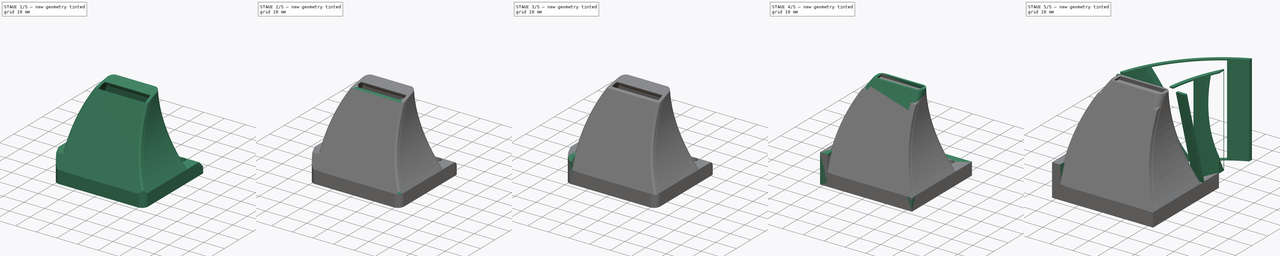
[diagram: build sequence overview — one tinted view per stage of 5, left to right]
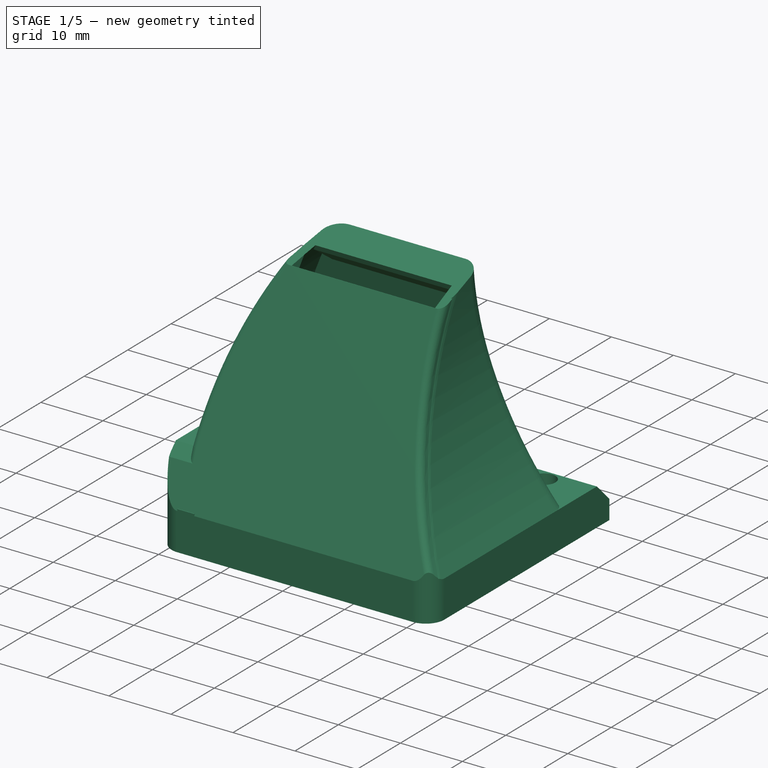
[diagram: stage 1 of 5 — iso view after this stage's code; geometry added in this stage tinted green]
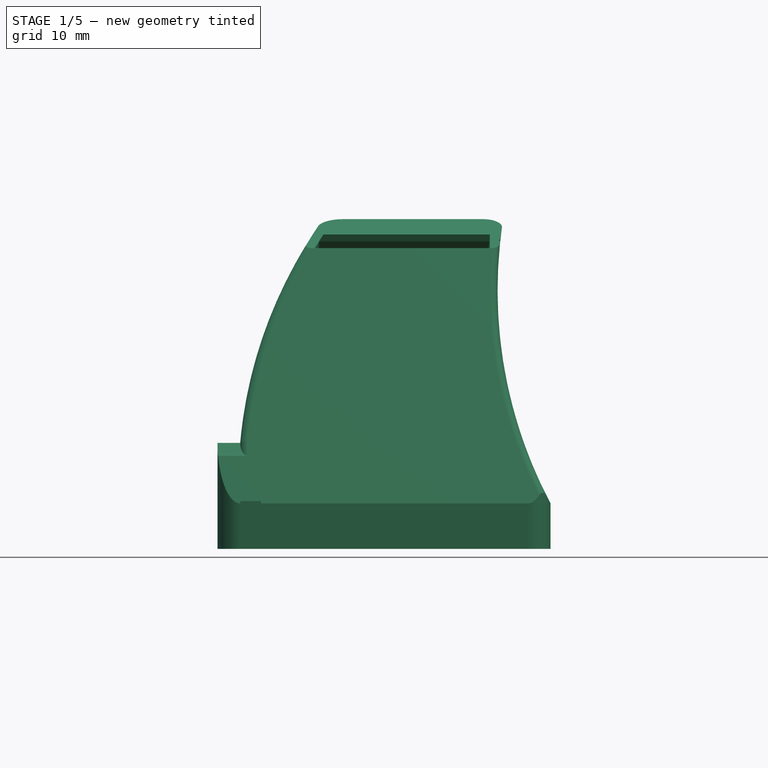
[diagram: stage 1 of 5 — front view after this stage's code; geometry added in this stage tinted green]
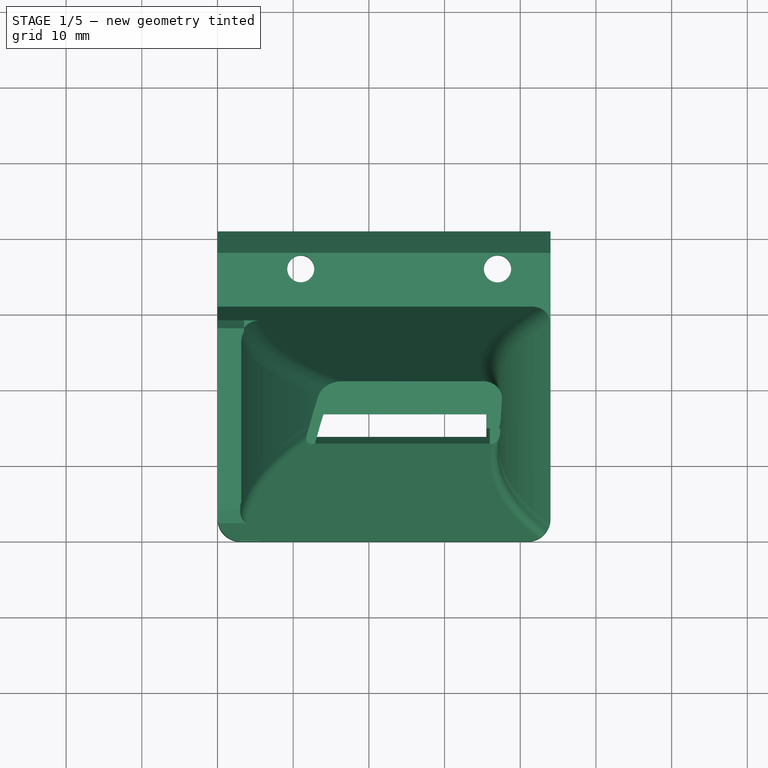
[diagram: stage 1 of 5 — top view after this stage's code; geometry added in this stage tinted green]
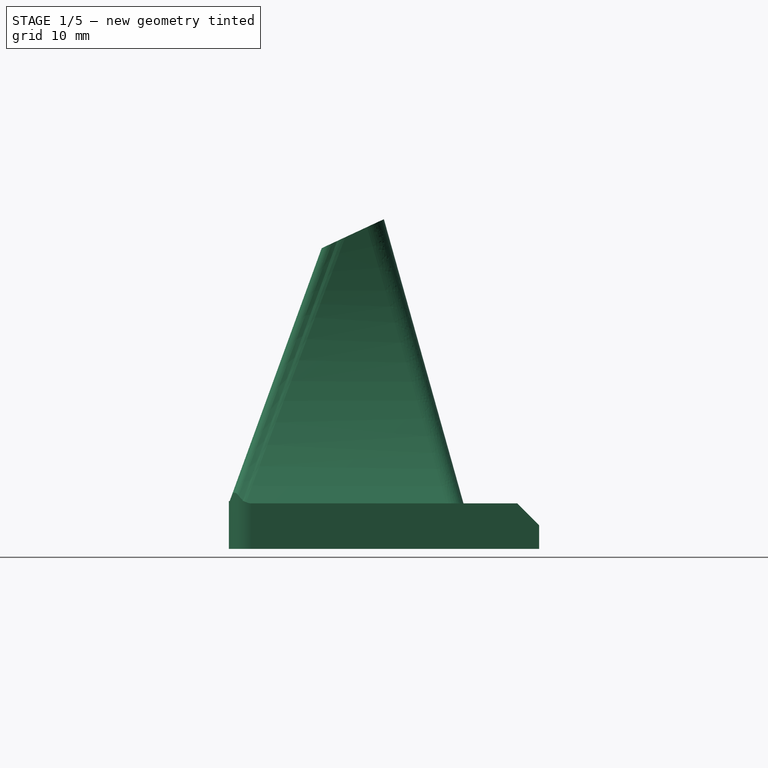
[diagram: stage 1 of 5 — right view after this stage's code; geometry added in this stage tinted green]
FCSTD DOCUMENT  (FreeCAD 0.16R5480 (Git))
Label: fan_duct_right_0.7.4
License: All rights reserved
LicenseURL: http://en.wikipedia.org/wiki/All_rights_reserved
objects: Sketcher::SketchObject×29, PartDesign::Pocket×15, PartDesign::Pad×13, Part::Feature×9, PartDesign::Chamfer×5, PartDesign::Fillet×4
note: 103 computed .brp shape members not serialized (recipe doc carries the construction recipe); baked Part::Feature solids carry a one-line shape summary decoded from their .brp

FEATURE [Part::Feature] Pad003006001  label="Pad003007"
  shape: bbox 45.16 x 40.24 x 46.74 mm, 109 faces (baked)
FEATURE [Sketcher::SketchObject] Sketch024
  Placement = pos=(0,29.3768,8.22563) rot=(1,0,0;1.84381rad)
  Support = -> Pad003006001 [Face46]
  sketch-geometry (9):
    g0: LineSegment StartX=14.8638 StartY=35.8741 StartZ=0 EndX=14.7604 EndY=33.4111 EndZ=0
    g1: LineSegment StartX=14.7604 StartY=33.4111 StartZ=0 EndX=35.8484 EndY=33.4111 EndZ=0
    g2: LineSegment StartX=42.3328 StartY=-2.31244 StartZ=0 EndX=9.27716 EndY=-2.31244 EndZ=0
    g3: LineSegment StartX=4.25167 StartY=4.63032 StartZ=0 EndX=4.25167 EndY=-2.31244 EndZ=0
    g4: LineSegment StartX=9.27716 StartY=-2.31244 StartZ=0 EndX=4.25167 EndY=-2.31244 EndZ=0
    g5: ArcOfCircle CenterX=62.8526 CenterY=2.15028 CenterZ=0 NormalX=0 NormalY=0 NormalZ=1 Radius=58.6534 StartAngle=2.52903 EndAngle=3.0993
    g6: GeomPoint [constr] X=118.378 Y=21.0502 Z=0
    g7: ArcOfCircle CenterX=96.9052 CenterY=26.0435 CenterZ=0 NormalX=0 NormalY=0 NormalZ=1 Radius=61.4997 StartAngle=3.02151 EndAngle=3.6208
    g8: GeomPoint [constr] X=157.41 Y=15.0273 Z=0
  constraints (13):
    c: Coincident(g1,g0)
    c: Horizontal(g1)
    c: Horizontal(g2)
    c: Vertical(g3)
    c: Coincident(g4,g2)
    c: Coincident(g4,g3)
    c: Horizontal(g4)
    c: Coincident(g5,g0)
    c: Coincident(g5,g3)
    c: PointOnObject(g6,g5)
    c: Coincident(g7,g2)
    c: Coincident(g7,g1)
    c: PointOnObject(g8,g7)
FEATURE [PartDesign::Pad] Pad003006002
  Length = 0.25
  Length2 = 100
  Sketch = -> Sketch024
  Type = 0
FEATURE [Sketcher::SketchObject] Sketch025
  Placement = pos=(0,40,0) rot=(0,0.707107,0.707107;3.14159rad)
  Support = -> Pad003006002 [Face74]
  sketch-geometry (4):
    g0: LineSegment StartX=-3 StartY=1.9 StartZ=0 EndX=-41 EndY=1.9 EndZ=0
    g1: LineSegment StartX=-41 StartY=1.9 StartZ=0 EndX=-41 EndY=0 EndZ=0
    g2: LineSegment StartX=-41 StartY=0 StartZ=0 EndX=-3 EndY=0 EndZ=0
    g3: LineSegment StartX=-3 StartY=0 StartZ=0 EndX=-3 EndY=1.9 EndZ=0
  constraints (8):
    c: Coincident(g0,g1)
    c: Coincident(g1,g2)
    c: Coincident(g2,g3)
    c: Coincident(g3,g0)
    c: Horizontal(g0)
    c: Horizontal(g2)
    c: Vertical(g1)
    c: Vertical(g3)
FEATURE [PartDesign::Pad] Pad003006003
  Length = 1
  Length2 = 100
  Sketch = -> Sketch025
  Type = 0
FEATURE [Sketcher::SketchObject] Sketch026
  Placement = pos=(0,41,0) rot=(0,0.707107,0.707107;3.14159rad)
  Support = -> Pad003006003 [Face116]
  sketch-geometry (4):
    g0: LineSegment StartX=0 StartY=0 StartZ=0 EndX=-44 EndY=0 EndZ=0
    g1: LineSegment StartX=-44 StartY=0 StartZ=0 EndX=-44 EndY=6 EndZ=0
    g2: LineSegment StartX=-44 StartY=6 StartZ=0 EndX=0 EndY=6 EndZ=0
    g3: LineSegment StartX=0 StartY=6 StartZ=0 EndX=0 EndY=0 EndZ=0
  constraints (9):
    c: Coincident(g0,g1)
    c: Coincident(g1,g2)
    c: Coincident(g2,g3)
    c: Coincident(g3,g0)
    c: Horizontal(g0)
    c: Horizontal(g2)
    c: Vertical(g1)
    c: Vertical(g3)
    c: Coincident(g0,g-1)
FEATURE [PartDesign::Pad] Pad003006004
  Length = 10
  Length2 = 100
  Reversed = true
  Sketch = -> Sketch026
  Type = 0
FEATURE [Sketcher::SketchObject] Sketch027
  Placement = pos=(0,0,6) rot=(0,0,1;0rad)
  Support = -> Pad003006004 [Face109]
  sketch-geometry (2):
    g0: Circle CenterX=11 CenterY=36 CenterZ=0 NormalX=0 NormalY=0 NormalZ=1 Radius=1.78415
    g1: Circle CenterX=37 CenterY=36 CenterZ=0 NormalX=0 NormalY=0 NormalZ=1 Radius=1.8
FEATURE [PartDesign::Pocket] Pocket010003003
  Length = 5
  Sketch = -> Sketch027
  Type = 1
FEATURE [PartDesign::Chamfer] Chamfer004
  Base = -> Pocket010003003 [Edge343,Edge348]
  Size = 2.01
FEATURE [PartDesign::Chamfer] Chamfer005
  Base = -> Chamfer004 [Edge58]
  Size = 2.9
FEATURE [Part::Feature] Fillet004001  label="Fillet005"
  shape: bbox 45.16 x 41.39 x 46.74 mm, 120 faces (baked)
FEATURE [Part::Feature] Fillet004001001  label="Fillet006"
  shape: bbox 45.16 x 41.39 x 46.74 mm, 120 faces (baked)
FEATURE [Part::Feature] Fillet004001001001  label="Fillet007"
  shape: bbox 45.16 x 41.39 x 46.74 mm, 120 faces (baked)
FEATURE [Part::Feature] Fillet004001001001001  label="Fillet008"
  shape: bbox 45.16 x 41.39 x 46.74 mm, 120 faces (baked)
FEATURE [Sketcher::SketchObject] Sketch028
  Placement = pos=(35.9772,0,0) rot=(0.57735,-0.57735,-0.57735;2.0944rad)
  Support = -> Fillet004001001001001 [Face46]
  sketch-geometry (4):
    g0: LineSegment StartX=-18.1497 StartY=41.3759 StartZ=0 EndX=-20.3949 EndY=40.3647 EndZ=0
    g1: LineSegment StartX=-18.1497 StartY=41.3759 StartZ=0 EndX=-16.5713 EndY=40.6527 EndZ=0
    g2: LineSegment StartX=-20.3949 StartY=40.3647 StartZ=0 EndX=-21.2697 EndY=37.2553 EndZ=0
    g3: LineSegment StartX=-21.2697 StartY=37.2553 StartZ=0 EndX=-16.5713 EndY=40.6527 EndZ=0
  constraints (4):
    c: Coincident(g0,g1)
    c: Coincident(g2,g0)
    c: Coincident(g3,g2)
    c: Coincident(g3,g1)
FEATURE [PartDesign::Pad] Pad003006005
  Length = 22.58
  Length2 = 100
  Sketch = -> Sketch028
  Type = 0
FEATURE [Part::Feature] Pad003006005001  label="Pad003006006"
  shape: bbox 45.16 x 41.39 x 46.74 mm, 121 faces (baked)
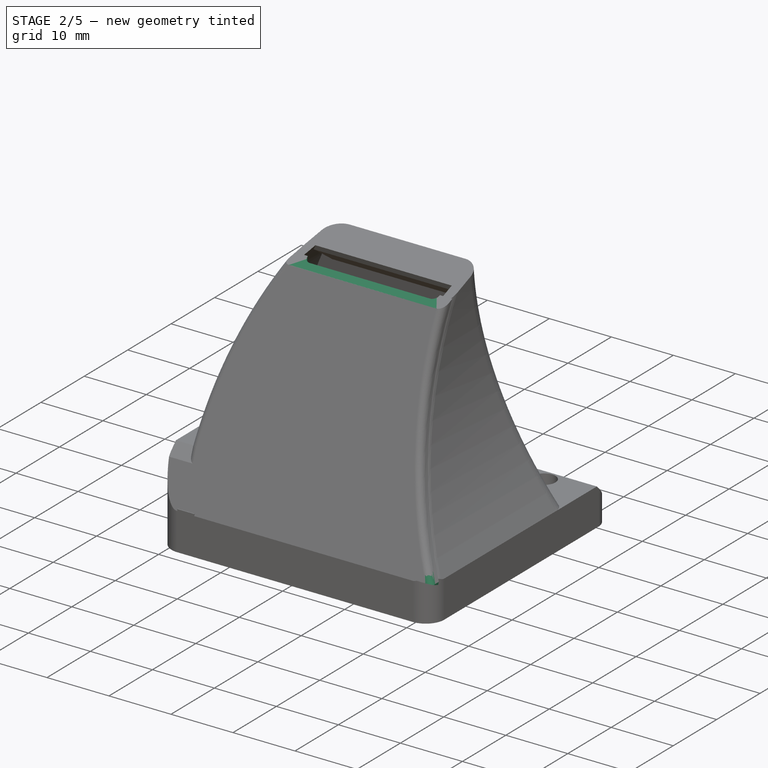
[diagram: stage 2 of 5 — iso view after this stage's code; geometry added in this stage tinted green]
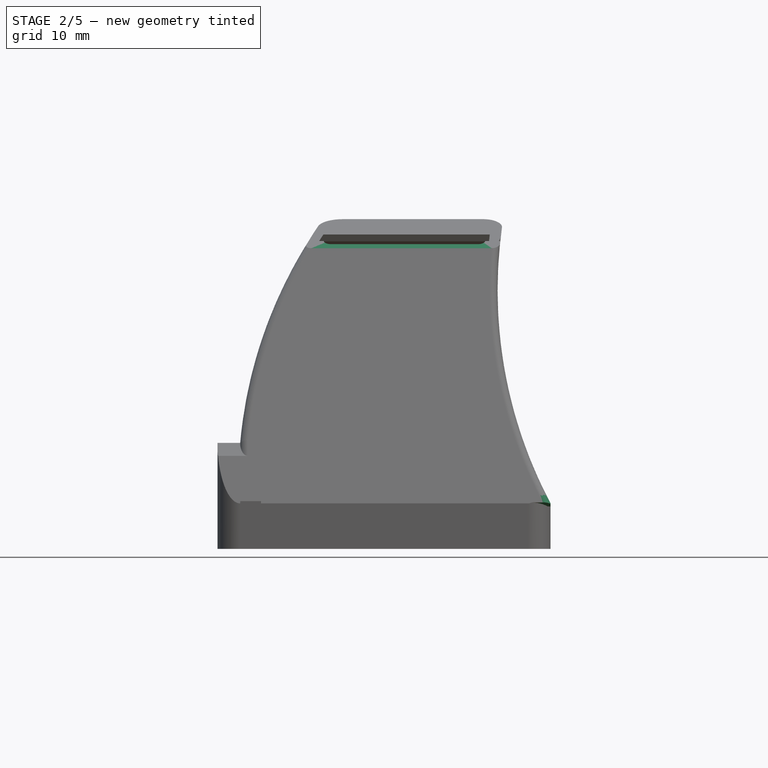
[diagram: stage 2 of 5 — front view after this stage's code; geometry added in this stage tinted green]
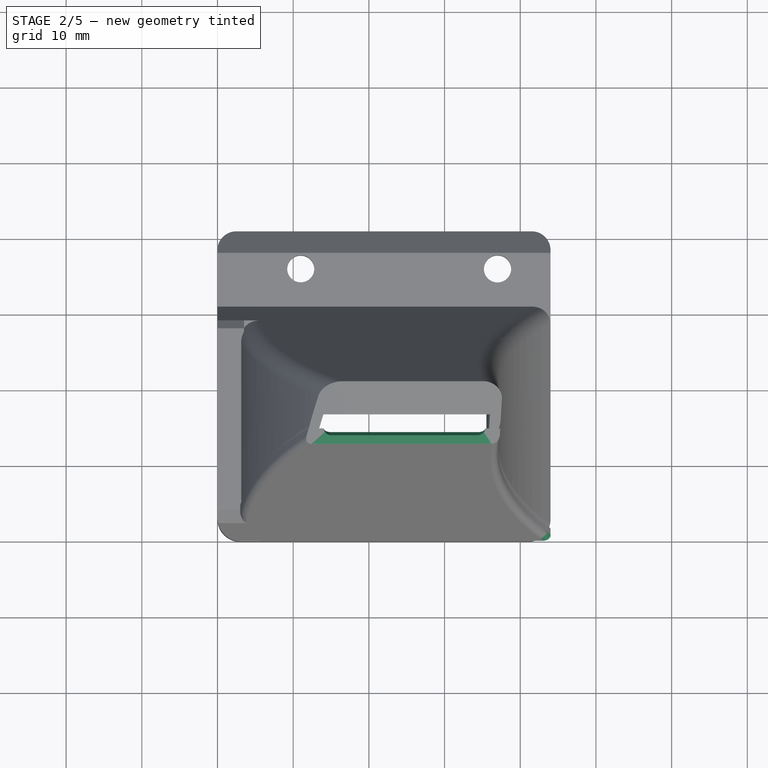
[diagram: stage 2 of 5 — top view after this stage's code; geometry added in this stage tinted green]
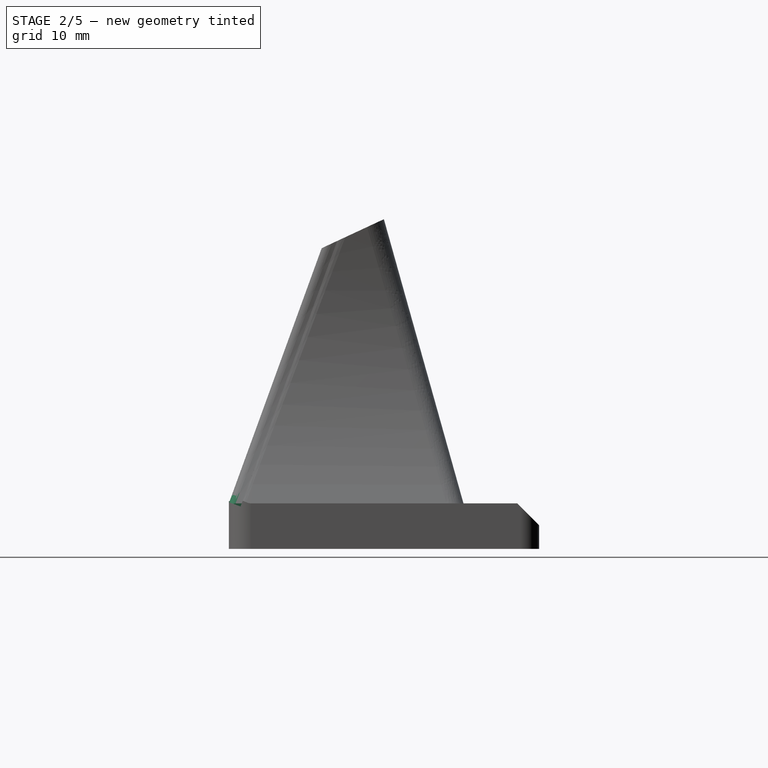
[diagram: stage 2 of 5 — right view after this stage's code; geometry added in this stage tinted green]
FEATURE [Part::Feature] Pocket010001  label="Pocket011"
  shape: bbox 45.16 x 48.16 x 64.13 mm, 77 faces (baked)
FEATURE [PartDesign::Fillet] Fillet003
  Base = -> Pocket010001 [Edge233,Edge41]
  Radius = 1
FEATURE [Sketcher::SketchObject] Sketch016
  Support = -> Fillet003 [Face12]
  sketch-geometry (4):
    g0: LineSegment StartX=15.1026 StartY=36.3754 StartZ=0 EndX=13.8927 EndY=33.8754 EndZ=0
    g1: LineSegment StartX=13.8927 StartY=33.8754 StartZ=0 EndX=36.4026 EndY=33.8754 EndZ=0
    g2: LineSegment StartX=36.4026 StartY=33.8754 StartZ=0 EndX=36.4026 EndY=36.3754 EndZ=0
    g3: LineSegment StartX=36.4026 StartY=36.3754 StartZ=0 EndX=15.1026 EndY=36.3754 EndZ=0
  constraints (12):
    c: Coincident(g0,g1)
    c: Horizontal(g1)
    c: Coincident(g1,g2)
    c: Vertical(g2)
    c: Coincident(g2,g3)
    c: Coincident(g3,g0)
    c: Horizontal(g3)
    c: DistanceX(g2) = 36.4026
    c: DistanceY(g2) = 36.3754
    c: DistanceX(g3) = -21.3
    c: DistanceX(g1) = 22.5099
    c: DistanceY(g2) = 2.5
FEATURE [PartDesign::Pad] Pad003003
  Length = 1
  Length2 = 100
  Reversed = true
  Sketch = -> Sketch016
  Type = 0
FEATURE [PartDesign::Chamfer] Chamfer003
  Base = -> Pad003003 [Edge210]
  Size = 1.9
FEATURE [Sketcher::SketchObject] Sketch017
  ExternalGeometry = -> [Chamfer003]
  Support = -> Chamfer003 [Face30]
  sketch-geometry (4):
    g0: ArcOfCircle CenterX=15.0488 CenterY=30.1658 CenterZ=0 NormalX=0 NormalY=0 NormalZ=1 Radius=1 StartAngle=1.5708 EndAngle=4.71239
    g1: ArcOfCircle CenterX=34.3585 CenterY=30.1658 CenterZ=0 NormalX=0 NormalY=0 NormalZ=1 Radius=1 StartAngle=4.71239 EndAngle=7.85398
    g2: LineSegment StartX=15.0488 StartY=29.1658 StartZ=0 EndX=34.3585 EndY=29.1658 EndZ=0
    g3: LineSegment StartX=15.0488 StartY=31.1658 StartZ=0 EndX=34.3585 EndY=31.1658 EndZ=0
  constraints (10):
    c: Tangent(g0,g3) = 1.5708
    c: Tangent(g0,g2) = -1.5708
    c: Tangent(g2,g1) = -1.5708
    c: Tangent(g3,g1) = 1.5708
    c: Horizontal(g2)
    c: Equal(g0,g1)
    c: PointOnObject(g0,g-3)
    c: Radius(g1) = 1
    c: DistanceX(g-3,g1) = -3
    c: DistanceX(g0,g-3) = -3
FEATURE [PartDesign::Pocket] Pocket010002
  Length = 5
  Sketch = -> Sketch017
  Type = 0
FEATURE [Part::Feature] Pocket010003001  label="Pocket010004"
  shape: bbox 45.16 x 48.16 x 64.13 mm, 100 faces (baked)
FEATURE [Sketcher::SketchObject] Sketch020
  ExternalGeometry = -> [Pocket010003001]
  Placement = pos=(0,0,0) rot=(1,0,0;3.14159rad)
  Support = -> Pocket010003001 [Face28]
  sketch-geometry (3):
    g0: ArcOfCircle CenterX=41 CenterY=-3 CenterZ=0 NormalX=0 NormalY=0 NormalZ=1 Radius=3 StartAngle=0 EndAngle=1.5708
    g1: LineSegment StartX=41 StartY=0 StartZ=0 EndX=44 EndY=0 EndZ=0
    g2: LineSegment StartX=44 StartY=0 StartZ=0 EndX=44 EndY=-3 EndZ=0
  constraints (8):
    c: Coincident(g0,g-3)
    c: Coincident(g0,g-3)
    c: Coincident(g0,g-3)
    c: Coincident(g0,g1)
    c: Coincident(g1,g2)
    c: Coincident(g2,g0)
    c: Vertical(g2)
    c: Horizontal(g1)
FEATURE [PartDesign::Pocket] Pocket010003002
  Length = 5
  Sketch = -> Sketch020
  Type = 1
FEATURE [Sketcher::SketchObject] Sketch021
  ExternalGeometry = -> [Pocket010003002]
  Placement = pos=(0,0,0) rot=(1,0,0;1.5708rad)
  Support = -> Pocket010003002 [Face30]
  sketch-geometry (4):
    g0: LineSegment StartX=3 StartY=0 StartZ=0 EndX=5.75 EndY=0 EndZ=0
    g1: LineSegment StartX=5.75 StartY=0 StartZ=0 EndX=5.75 EndY=6.3 EndZ=0
    g2: LineSegment StartX=5.75 StartY=6.3 StartZ=0 EndX=3 EndY=6.3 EndZ=0
    g3: LineSegment StartX=3 StartY=6.3 StartZ=0 EndX=3 EndY=0 EndZ=0
  constraints (11):
    c: Coincident(g0,g1)
    c: Coincident(g1,g2)
    c: Coincident(g2,g3)
    c: Coincident(g3,g0)
    c: Horizontal(g0)
    c: Horizontal(g2)
    c: Vertical(g1)
    c: Vertical(g3)
    c: Coincident(g0,g-3)
    c: DistanceX(g1) = 5.75
    c: DistanceY(g1) = 6.3
FEATURE [PartDesign::Pad] Pad003005
  Length = 1
  Length2 = 100
  Reversed = true
  Sketch = -> Sketch021
  Type = 0
FEATURE [Sketcher::SketchObject] Sketch022
  Placement = pos=(0,0,0) rot=(0.57735,-0.57735,-0.57735;2.0944rad)
  Support = -> Pad003005 [Face65]
FEATURE [Sketcher::SketchObject] Sketch023
  ExternalGeometry = -> [Pad003005]
  Placement = pos=(0,30.3041,8.48528) rot=(0,0.604304,0.796754;3.14159rad)
  Support = -> Pad003005 [Face92]
  sketch-geometry (4):
    g0: LineSegment StartX=0 StartY=4.63071 StartZ=0 EndX=-9.27716 EndY=4.63071 EndZ=0
    g1: LineSegment StartX=-9.27716 StartY=4.63071 StartZ=0 EndX=-9.27716 EndY=-2.58087 EndZ=0
    g2: LineSegment StartX=-9.27716 StartY=-2.58087 StartZ=0 EndX=0 EndY=-2.58087 EndZ=0
    g3: LineSegment StartX=0 StartY=-2.58087 StartZ=0 EndX=0 EndY=4.63071 EndZ=0
  constraints (10):
    c: Coincident(g0,g1)
    c: Coincident(g1,g2)
    c: Coincident(g2,g3)
    c: Coincident(g3,g0)
    c: Horizontal(g0)
    c: Horizontal(g2)
    c: Vertical(g1)
    c: Vertical(g3)
    c: Coincident(g0,g-3)
    c: PointOnObject(g1,g-4)
FEATURE [PartDesign::Pad] Pad003006
  Length = 1
  Length2 = 100
  Reversed = true
  Sketch = -> Sketch023
  Type = 0
FEATURE [PartDesign::Fillet] Fillet004
  Base = -> Chamfer005 [Edge1,Edge4]
  Radius = 2.5
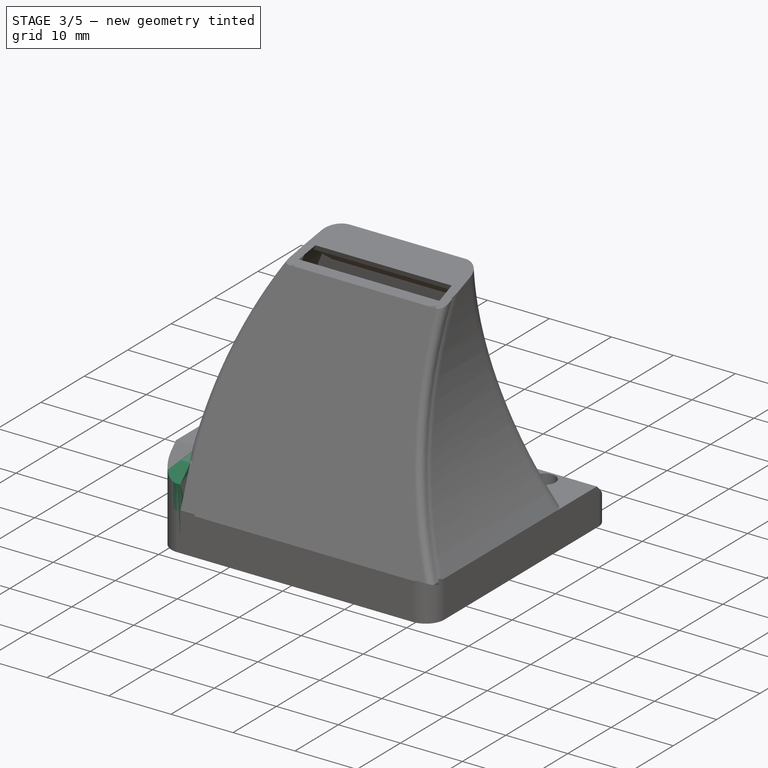
[diagram: stage 3 of 5 — iso view after this stage's code; geometry added in this stage tinted green]
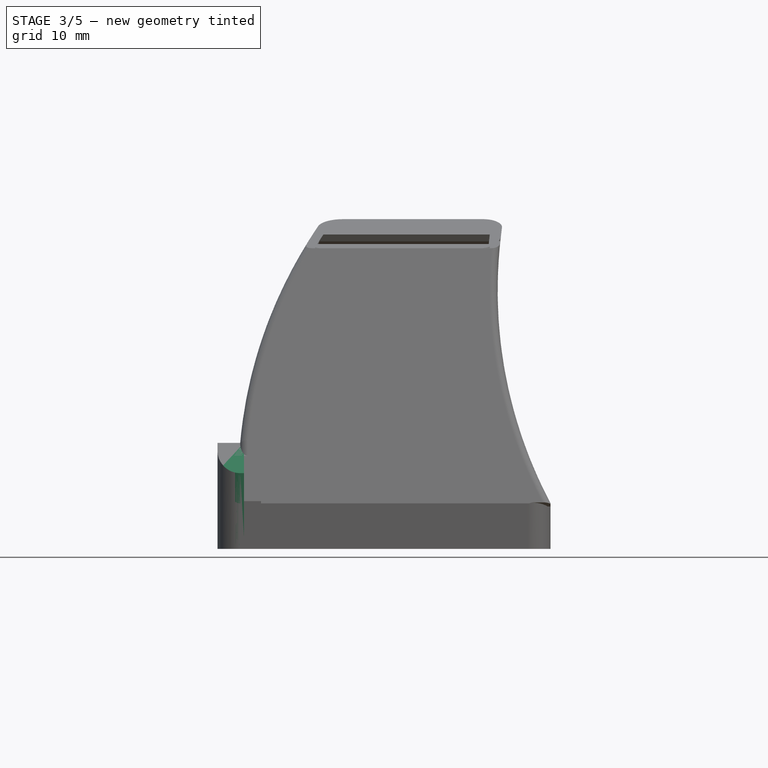
[diagram: stage 3 of 5 — front view after this stage's code; geometry added in this stage tinted green]
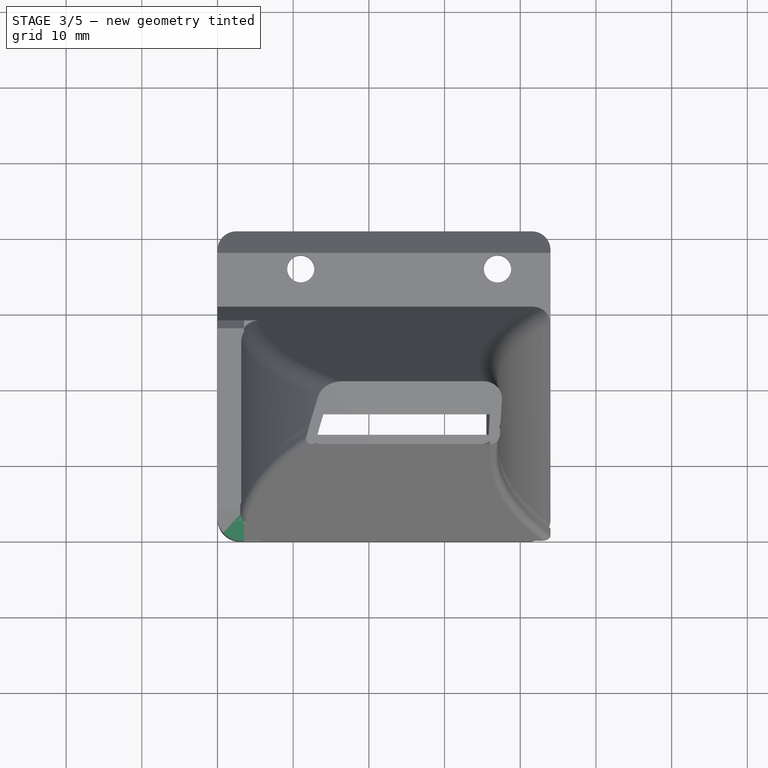
[diagram: stage 3 of 5 — top view after this stage's code; geometry added in this stage tinted green]
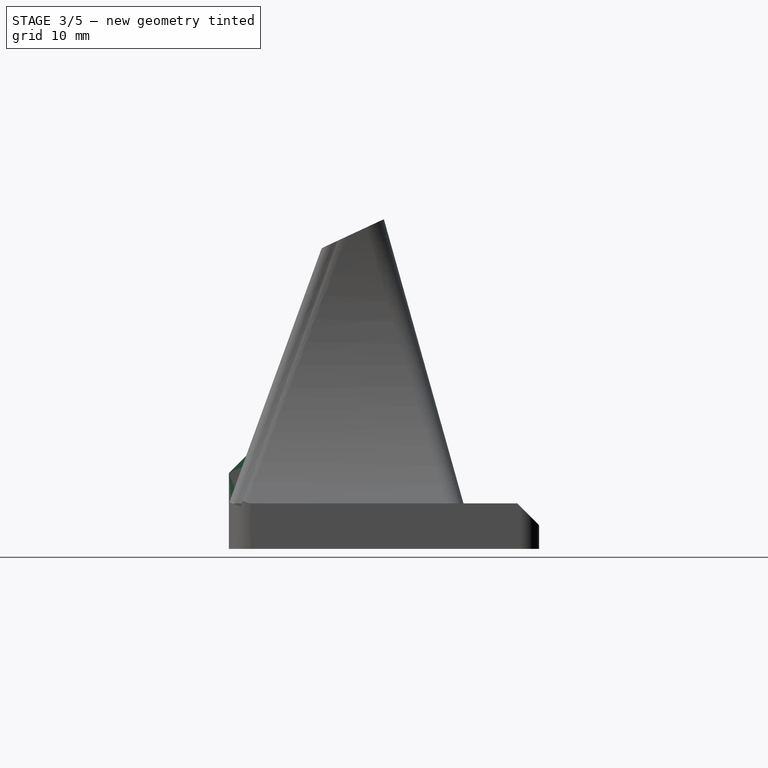
[diagram: stage 3 of 5 — right view after this stage's code; geometry added in this stage tinted green]
FEATURE [Sketcher::SketchObject] Sketch007
  Placement = pos=(0,0,0) rot=(0.57735,-0.57735,-0.57735;2.0944rad)
  sketch-geometry (3):
    g0: Circle CenterX=-17 CenterY=2.75 CenterZ=0 NormalX=0 NormalY=0 NormalZ=1 Radius=1.5
    g1: Circle CenterX=-8.77276 CenterY=7.5 CenterZ=0 NormalX=0 NormalY=0 NormalZ=1 Radius=1.5
    g2: LineSegment [constr] StartX=-17 StartY=2.75 StartZ=0 EndX=-8.77276 EndY=7.5 EndZ=0
  constraints (8):
    c: DistanceX(g-1,g0) = -17
    c: DistanceY(g-1,g0) = 2.75
    c: Coincident(g2,g0)
    c: Coincident(g2,g1)
    c: Angle(g2,g-1) = 2.61799
    c: Distance(g2) = 9.5
    c: Radius(g1) = 1.5
    c: Equal(g1,g0)
FEATURE [PartDesign::Pocket] Pocket003
  Length = 5
  Sketch = -> Sketch007
  Type = 0
FEATURE [Sketcher::SketchObject] Sketch008
  ExternalGeometry = -> [Pocket003]
  Placement = pos=(0,0,0) rot=(1,0,0;3.14159rad)
  Support = -> Pocket003 [Face5]
  sketch-geometry (1):
    g0: Circle CenterX=4 CenterY=-4 CenterZ=0 NormalX=0 NormalY=0 NormalZ=1 Radius=2.75
  constraints (2):
    c: Coincident(g0,g-3)
    c: PointOnObject(g-3,g0)
FEATURE [PartDesign::Pocket] Pocket004
  Length = 7
  Sketch = -> Sketch008
  Type = 0
FEATURE [Sketcher::SketchObject] Sketch009
  Placement = pos=(44,0,0) rot=(0.57735,0.57735,0.57735;2.0944rad)
  Support = -> Pocket004 [Face13]
  sketch-geometry (3):
    g0: LineSegment StartX=0 StartY=34 StartZ=0 EndX=30 EndY=47.9892 EndZ=0
    g1: LineSegment StartX=30 StartY=47.9892 StartZ=0 EndX=0 EndY=47.9892 EndZ=0
    g2: LineSegment StartX=0 StartY=47.9892 StartZ=0 EndX=0 EndY=34 EndZ=0
  constraints (9):
    c: PointOnObject(g0,g-2)
    c: Coincident(g0,g1)
    c: PointOnObject(g1,g-2)
    c: Coincident(g1,g2)
    c: Coincident(g2,g0)
    c: Horizontal(g1)
    c: DistanceX(g1) = -30
    c: Angle(g1,g0) = 0.436332
    c: DistanceY(g-1,g0) = 34
FEATURE [PartDesign::Pocket] Pocket005
  Length = 5
  Sketch = -> Sketch009
  Type = 1
FEATURE [Sketcher::SketchObject] Sketch010
  ExternalGeometry = -> [Pocket005]
  Placement = pos=(0,0,0) rot=(0.57735,-0.57735,-0.57735;2.0944rad)
  Support = -> Pocket005 [Face9]
  sketch-geometry (3):
    g0: LineSegment StartX=-40 StartY=4 StartZ=0 EndX=-38 EndY=6 EndZ=0
    g1: LineSegment StartX=-38 StartY=6 StartZ=0 EndX=-40 EndY=6 EndZ=0
    g2: LineSegment StartX=-40 StartY=6 StartZ=0 EndX=-40 EndY=4 EndZ=0
  constraints (8):
    c: PointOnObject(g0,g-3)
    c: Coincident(g0,g1)
    c: Coincident(g1,g-3)
    c: Horizontal(g1)
    c: Coincident(g1,g2)
    c: Coincident(g2,g0)
    c: Angle(g1,g0) = 0.785398
    c: DistanceX(g1) = -2
FEATURE [PartDesign::Pocket] Pocket006
  Length = 5
  Sketch = -> Sketch010
  Type = 1
FEATURE [Sketcher::SketchObject] Sketch011
  ExternalGeometry = -> [Pocket006]
  Placement = pos=(44,0,0) rot=(0.57735,0.57735,0.57735;2.0944rad)
  Support = -> Pocket006 [Face13]
  sketch-geometry (4):
    g0: LineSegment StartX=31 StartY=6 StartZ=0 EndX=20.4852 EndY=43.5524 EndZ=0
    g1: LineSegment StartX=20.4852 StartY=43.5524 StartZ=0 EndX=32.5 EndY=43.5524 EndZ=0
    g2: LineSegment StartX=32.5 StartY=43.5524 StartZ=0 EndX=32.5 EndY=6 EndZ=0
    g3: LineSegment StartX=32.5 StartY=6 StartZ=0 EndX=31 EndY=6 EndZ=0
  constraints (10):
    c: Coincident(g-3,g0)
    c: Coincident(g0,g-4)
    c: Coincident(g0,g1)
    c: Horizontal(g1)
    c: Coincident(g1,g2)
    c: PointOnObject(g2,g-3)
    c: Coincident(g2,g3)
    c: Coincident(g3,g0)
    c: Vertical(g2)
    c: DistanceX(g0,g2) = 1.5
FEATURE [PartDesign::Pocket] Pocket007
  Length = 5
  Sketch = -> Sketch011
  Type = 1
FEATURE [Sketcher::SketchObject] Sketch018
  Placement = pos=(0,-13.0228,27.9274) rot=(1,0,0;0.436332rad)
  Support = -> Pocket010002 [Face8]
  sketch-geometry (4):
    g0: LineSegment StartX=36.6207 StartY=35.8767 StartZ=0 EndX=14.7195 EndY=35.8767 EndZ=0
    g1: LineSegment StartX=14.7195 StartY=35.8767 StartZ=0 EndX=13.2886 EndY=32.1801 EndZ=0
    g2: LineSegment StartX=13.2886 StartY=32.1801 StartZ=0 EndX=36.6207 EndY=32.1801 EndZ=0
    g3: LineSegment StartX=36.6207 StartY=32.1801 StartZ=0 EndX=36.6207 EndY=35.8767 EndZ=0
  constraints (12):
    c: Coincident(g0,g1)
    c: Coincident(g1,g2)
    c: Coincident(g2,g3)
    c: Coincident(g3,g0)
    c: Horizontal(g0)
    c: Horizontal(g2)
    c: Vertical(g3)
    c: DistanceX(g0) = 36.6207
    c: DistanceY(g0) = 35.8767
    c: DistanceX(g1) = 13.2886
    c: DistanceY(g1) = 32.1801
    c: Angle(g2,g1) = 1.20146
FEATURE [PartDesign::Pad] Pad003004
  Length = 1
  Length2 = 100
  Reversed = true
  Sketch = -> Sketch018
  Type = 0
FEATURE [Sketcher::SketchObject] Sketch019
  ExternalGeometry = -> [Pad003004]
  Placement = pos=(0,-13.0259,27.9199) rot=(1,0,0;0.436527rad)
  Support = -> Pad003004 [Face4]
  sketch-geometry (4):
    g0: LineSegment StartX=13.9977 StartY=32.1861 StartZ=0 EndX=35.9772 EndY=32.1861 EndZ=0
    g1: LineSegment StartX=35.9772 StartY=32.1861 StartZ=0 EndX=35.9772 EndY=27.9361 EndZ=0
    g2: LineSegment StartX=35.9772 StartY=27.9361 StartZ=0 EndX=12.8589 EndY=27.9361 EndZ=0
    g3: LineSegment StartX=12.8589 StartY=27.9361 StartZ=0 EndX=13.9977 EndY=32.1861 EndZ=0
  constraints (11):
    c: Coincident(g0,g1)
    c: Coincident(g1,g2)
    c: Coincident(g2,g3)
    c: Coincident(g3,g0)
    c: Horizontal(g0)
    c: Horizontal(g2)
    c: Vertical(g1)
    c: Coincident(g0,g-3)
    c: Angle(g3,g0) = 1.8326
    c: DistanceY(g3) = 4.25
    c: Coincident(g0,g-5)
FEATURE [PartDesign::Pocket] Pocket010003
  Length = 5
  Sketch = -> Sketch019
  Type = 0
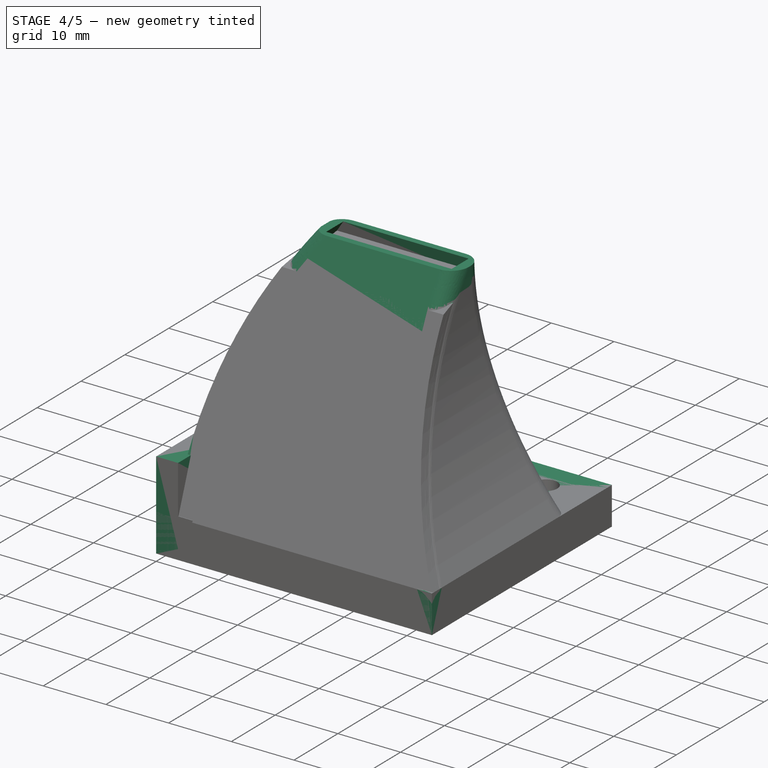
[diagram: stage 4 of 5 — iso view after this stage's code; geometry added in this stage tinted green]
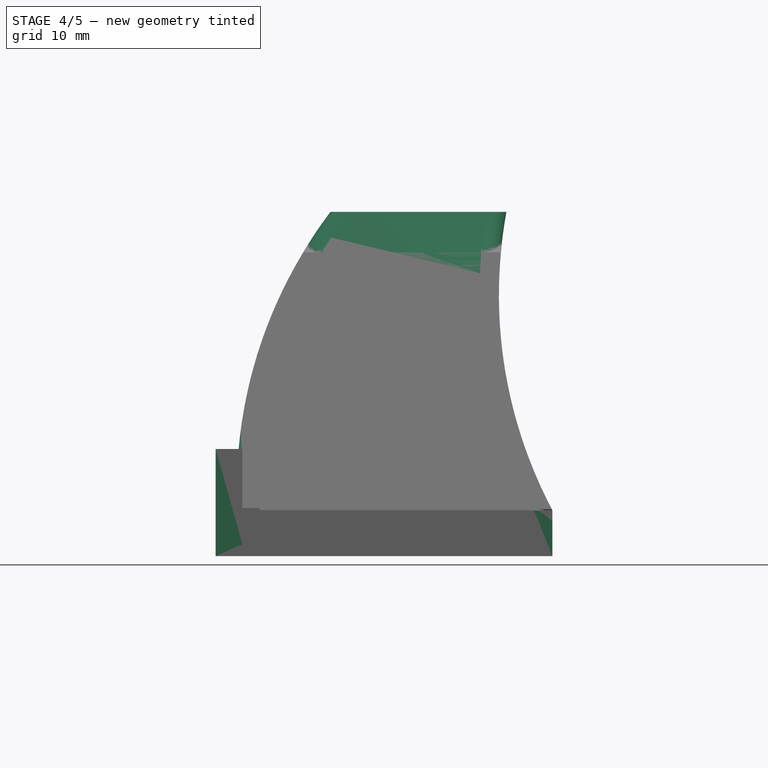
[diagram: stage 4 of 5 — front view after this stage's code; geometry added in this stage tinted green]
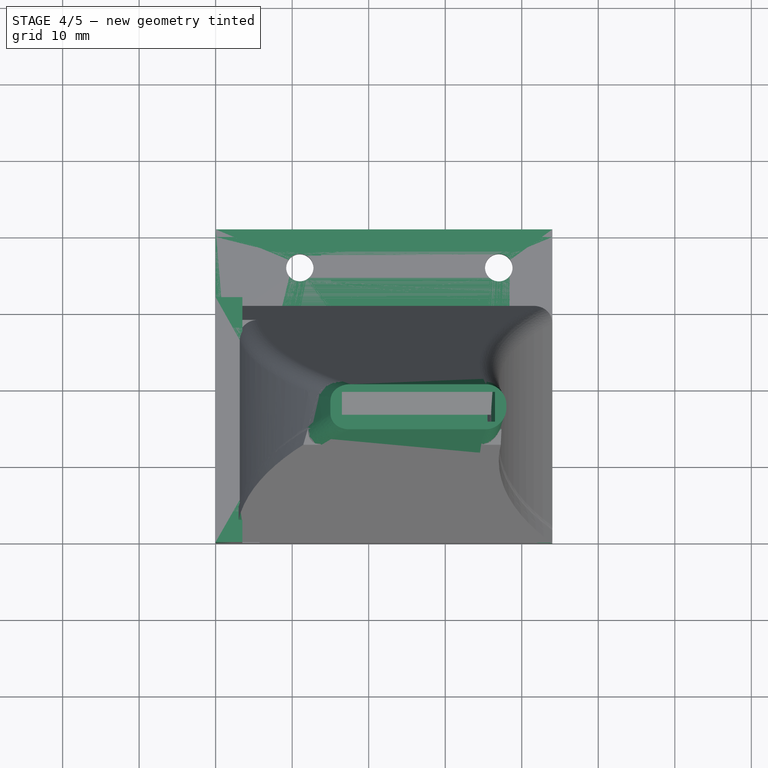
[diagram: stage 4 of 5 — top view after this stage's code; geometry added in this stage tinted green]
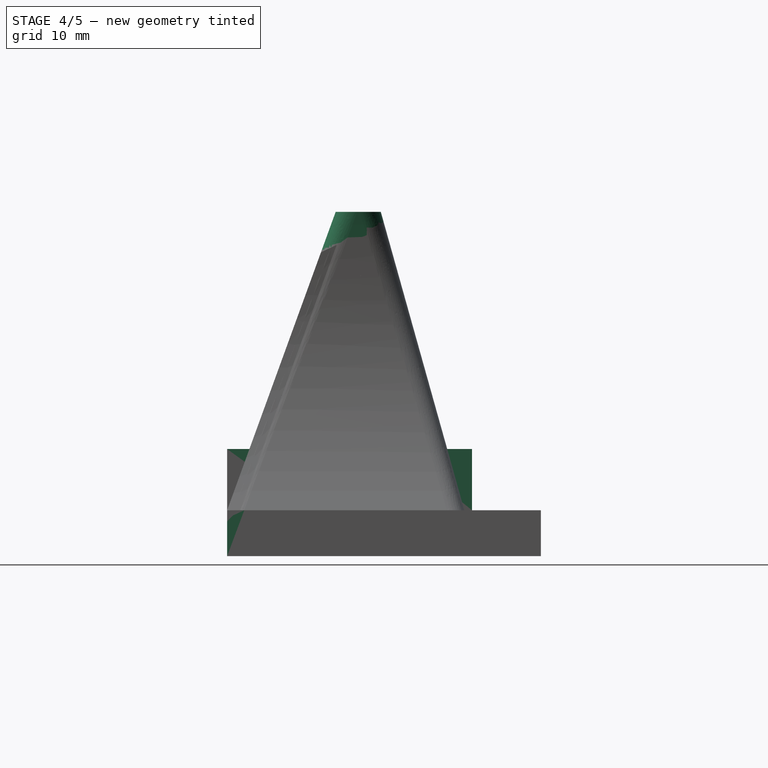
[diagram: stage 4 of 5 — right view after this stage's code; geometry added in this stage tinted green]
FEATURE [Sketcher::SketchObject] Sketch
  sketch-geometry (9):
    g0: LineSegment StartX=0 StartY=0 StartZ=0 EndX=44 EndY=0 EndZ=0
    g1: LineSegment StartX=44 StartY=0 StartZ=0 EndX=44 EndY=41 EndZ=0
    g2: LineSegment StartX=44 StartY=41 StartZ=0 EndX=0 EndY=41 EndZ=0
    g3: LineSegment StartX=0 StartY=41 StartZ=0 EndX=0 EndY=0 EndZ=0
    g4: Circle CenterX=4 CenterY=4 CenterZ=0 NormalX=0 NormalY=0 NormalZ=1 Radius=2.75
    g5: Circle CenterX=36 CenterY=4 CenterZ=0 NormalX=0 NormalY=0 NormalZ=1 Radius=2.75
    g6: LineSegment [constr] StartX=4 StartY=4 StartZ=0 EndX=36 EndY=4 EndZ=0
    g7: Circle CenterX=11 CenterY=36 CenterZ=0 NormalX=0 NormalY=0 NormalZ=1 Radius=1.8
    g8: Circle CenterX=37 CenterY=36 CenterZ=0 NormalX=0 NormalY=0 NormalZ=1 Radius=1.8
  constraints (24):
    c: Coincident(g0,g1)
    c: Coincident(g1,g2)
    c: Coincident(g2,g3)
    c: Coincident(g3,g0)
    c: Horizontal(g0)
    c: Horizontal(g2)
    c: Vertical(g1)
    c: Vertical(g3)
    c: Coincident(g0,g-1)
    c: DistanceX(g2) = -44
    c: DistanceY(g-1,g4) = 4
    c: DistanceX(g-1,g4) = 4
    c: Coincident(g6,g4)
    c: Coincident(g6,g5)
    c: Horizontal(g6)
    c: Radius(g4) = 2.75
    c: Equal(g4,g5)
    c: DistanceX(g7,g2) = -11
    c: DistanceX(g6) = 32
    c: Radius(g8) = 1.8
    c: Equal(g8,g7)
    c: DistanceX(g7,g8) = 26
    c: DistanceY(g-1,g7) = 36
    c: DistanceY(g1) = 41
FEATURE [PartDesign::Pad] Pad
  Length = 6
  Length2 = 100
  Sketch = -> Sketch
  Type = 0
FEATURE [PartDesign::Chamfer] Chamfer
  Base = -> Pad [Edge23,Edge20]
  Size = 2
FEATURE [Part::Feature] Pad003001  label="Pad004"
  shape: bbox 44 x 40 x 45 mm, 46 faces (baked)
FEATURE [PartDesign::Fillet] Fillet001
  Base = -> Pad003001 [Edge125,Edge124,Edge127,Edge126]
  Radius = 2.5
FEATURE [PartDesign::Chamfer] Chamfer002
  Base = -> Pocket007 [Edge94]
  Size = 2.1
FEATURE [Sketcher::SketchObject] Sketch012
  ExternalGeometry = -> [Chamfer002]
  Placement = pos=(44,0,0) rot=(0.57735,0.57735,0.57735;2.0944rad)
  Support = -> Chamfer002 [Face19]
  sketch-geometry (4):
    g0: LineSegment StartX=0.05111 StartY=6.14051 StartZ=0 EndX=1.55111 EndY=5.59488 EndZ=0
    g1: LineSegment StartX=1.55111 StartY=5.59488 StartZ=0 EndX=14.3111 EndY=40.6739 EndZ=0
    g2: LineSegment StartX=14.3111 StartY=40.6739 StartZ=0 EndX=12.2655 EndY=39.7195 EndZ=0
    g3: LineSegment StartX=12.2655 StartY=39.7195 StartZ=0 EndX=0.05111 EndY=6.14051 EndZ=0
  constraints (10):
    c: Coincident(g0,g-4)
    c: Coincident(g0,g1)
    c: Coincident(g1,g2)
    c: Coincident(g2,g-3)
    c: Coincident(g2,g3)
    c: Coincident(g3,g0)
    c: Perpendicular(g3,g0)
    c: Parallel(g3,g1)
    c: Angle(g3,g2) = 2.35619
    c: DistanceX(g0) = 1.5
FEATURE [PartDesign::Pad] Pad003002
  Length = 41
  Length2 = 100
  Reversed = true
  Sketch = -> Sketch012
  Type = 0
FEATURE [Sketcher::SketchObject] Sketch013
  ExternalGeometry = -> [Pad003002]
  Placement = pos=(0,40,0) rot=(0,0.707107,0.707107;3.14159rad)
  Support = -> Pad003002 [Face66]
  sketch-geometry (1):
    g0: Circle CenterX=-97 CenterY=34.1247 CenterZ=0 NormalX=0 NormalY=0 NormalZ=1 Radius=60
  constraints (3):
    c: Radius(g0) = 60
    c: PointOnObject(g-4,g0)
    c: DistanceX(g0) = -97
FEATURE [PartDesign::Pocket] Pocket008
  Length = 5
  Sketch = -> Sketch013
  Type = 1
FEATURE [Sketcher::SketchObject] Sketch014
  ExternalGeometry = -> [Pocket008]
  Placement = pos=(0,40,0) rot=(0,0.707107,0.707107;3.14159rad)
  Support = -> Pocket008 [Face67]
  sketch-geometry (3):
    g0: ArcOfCircle CenterX=-62.7565 CenterY=8.6 CenterZ=0 NormalX=0 NormalY=0 NormalZ=1 Radius=60 StartAngle=0.0901219 EndAngle=0.570437
    g1: LineSegment StartX=-12.2566 StartY=41 StartZ=0 EndX=-3 EndY=41 EndZ=0
    g2: LineSegment StartX=-3 StartY=41 StartZ=0 EndX=-3 EndY=14 EndZ=0
  constraints (9):
    c: Radius(g0) = 60
    c: Coincident(g0,g-3)
    c: DistanceY(g-1,g0) = 8.6
    c: Coincident(g0,g1)
    c: Coincident(g1,g2)
    c: Coincident(g2,g0)
    c: Vertical(g2)
    c: DistanceY(g1,g0) = -27
    c: Horizontal(g1)
FEATURE [PartDesign::Pocket] Pocket009
  Length = 5
  Sketch = -> Sketch014
  Type = 1
FEATURE [Sketcher::SketchObject] Sketch015
  ExternalGeometry = -> [Pocket009]
  Placement = pos=(0,0,0) rot=(0.57735,-0.57735,-0.57735;2.0944rad)
  Support = -> Pocket009 [Face69]
  sketch-geometry (3):
    g0: LineSegment StartX=-12.2655 StartY=39.7195 StartZ=0 EndX=0 EndY=6 EndZ=0
    g1: LineSegment StartX=0 StartY=6 StartZ=0 EndX=0 EndY=39.7195 EndZ=0
    g2: LineSegment StartX=0 StartY=39.7195 StartZ=0 EndX=-12.2655 EndY=39.7195 EndZ=0
  constraints (8):
    c: Coincident(g0,g-4)
    c: Coincident(g0,g1)
    c: PointOnObject(g1,g-2)
    c: Vertical(g1)
    c: Coincident(g1,g2)
    c: Coincident(g2,g0)
    c: Horizontal(g2)
    c: PointOnObject(g-3,g0)
FEATURE [PartDesign::Pocket] Pocket010
  Length = 5
  Sketch = -> Sketch015
  Type = 0
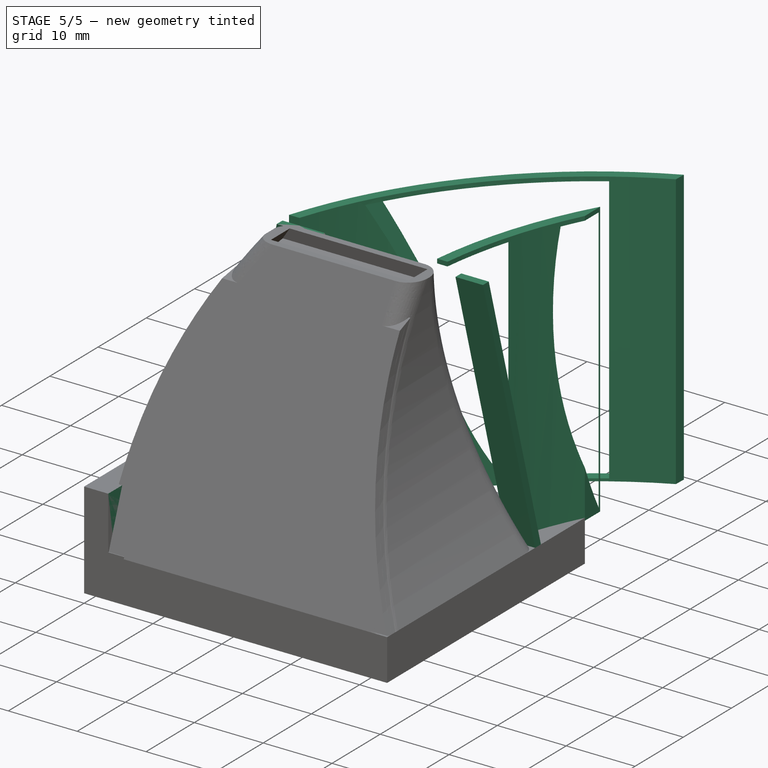
[diagram: stage 5 of 5 — iso view after this stage's code; geometry added in this stage tinted green]
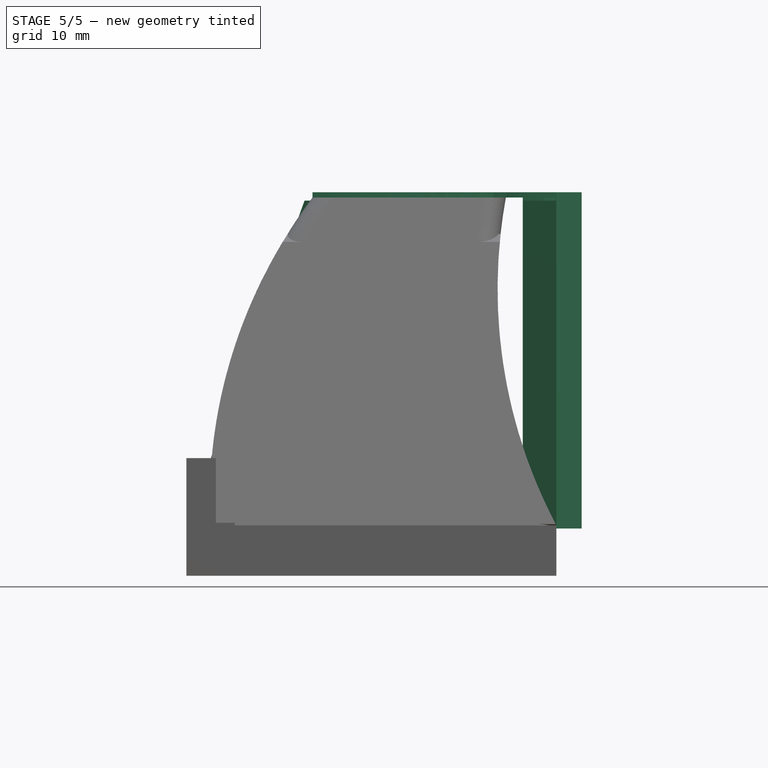
[diagram: stage 5 of 5 — front view after this stage's code; geometry added in this stage tinted green]
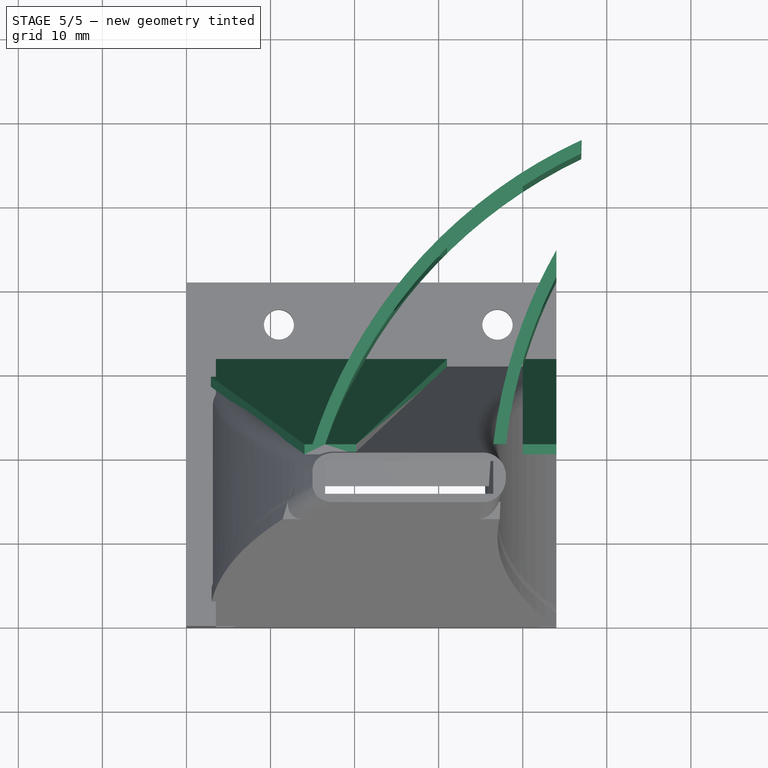
[diagram: stage 5 of 5 — top view after this stage's code; geometry added in this stage tinted green]
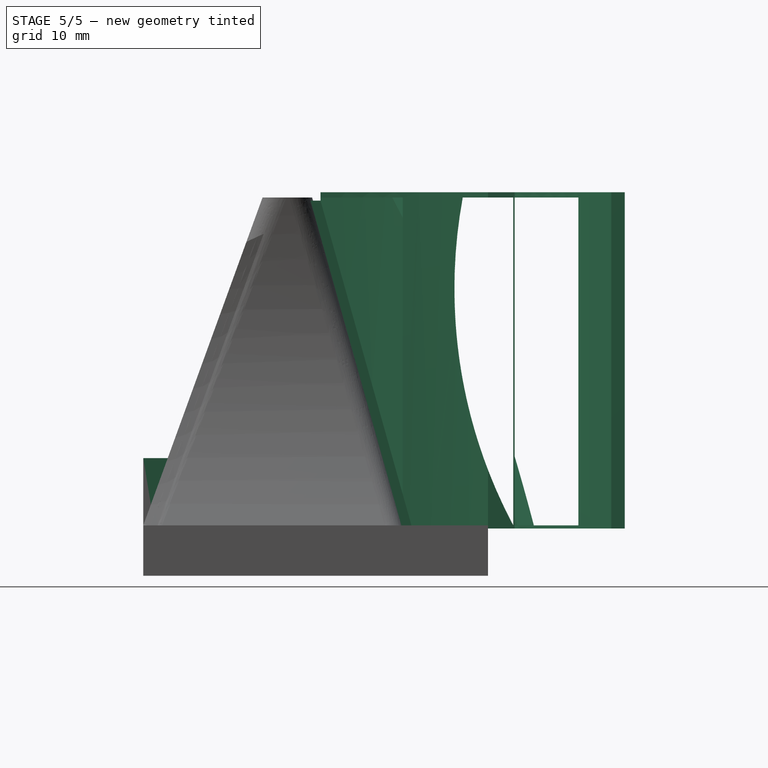
[diagram: stage 5 of 5 — right view after this stage's code; geometry added in this stage tinted green]
FEATURE [Sketcher::SketchObject] Sketch001
  ExternalGeometry = -> [Chamfer]
  Placement = pos=(0,0,6) rot=(0,0,1;0rad)
  Support = -> Chamfer [Face3]
  sketch-geometry (8):
    g0: LineSegment StartX=2 StartY=31 StartZ=0 EndX=39 EndY=31 EndZ=0
    g1: LineSegment StartX=39 StartY=31 StartZ=0 EndX=39 EndY=8.5 EndZ=0
    g2: LineSegment StartX=2 StartY=8.5 StartZ=0 EndX=2 EndY=31 EndZ=0
    g3: LineSegment StartX=32 StartY=8.5 StartZ=0 EndX=32 EndY=3.5 EndZ=0
    g4: LineSegment StartX=32 StartY=3.5 StartZ=0 EndX=8 EndY=3.5 EndZ=0
    g5: LineSegment StartX=8 StartY=3.5 StartZ=0 EndX=8 EndY=8.5 EndZ=0
    g6: LineSegment StartX=2 StartY=8.5 StartZ=0 EndX=8 EndY=8.5 EndZ=0
    g7: LineSegment StartX=32 StartY=8.5 StartZ=0 EndX=39 EndY=8.5 EndZ=0
  constraints (24):
    c: Coincident(g0,g1)
    c: Coincident(g2,g0)
    c: Horizontal(g0)
    c: Vertical(g1)
    c: Vertical(g2)
    c: Coincident(g3,g4)
    c: Coincident(g4,g5)
    c: Horizontal(g4)
    c: Vertical(g3)
    c: Vertical(g5)
    c: Coincident(g6,g2)
    c: Coincident(g6,g5)
    c: Horizontal(g6)
    c: Coincident(g7,g3)
    c: Coincident(g7,g1)
    c: Horizontal(g7)
    c: PointOnObject(g5,g7)
    c: DistanceY(g-1,g4) = 3.5
    c: DistanceX(g-1,g2) = 2
    c: DistanceX(g0,g-3) = 5
    c: DistanceY(g0,g-3) = 10
    c: DistanceY(g5) = 5
    c: DistanceX(g7) = 7
    c: DistanceX(g6) = 6
FEATURE [PartDesign::Pocket] Pocket
  Length = 5
  Sketch = -> Sketch001
  Type = 1
FEATURE [PartDesign::Fillet] Fillet
  Base = -> Pocket [Edge51,Edge45,Edge44,Edge46,Edge47,Edge49,Edge48,Edge50]
  Radius = 2.4
FEATURE [Sketcher::SketchObject] Sketch002
  ExternalGeometry = -> [Fillet]
  Placement = pos=(0,0,0) rot=(0.57735,-0.57735,-0.57735;2.0944rad)
  Support = -> Fillet [Face19]
  sketch-geometry (8):
    g0: LineSegment StartX=-32 StartY=5.6213 StartZ=0 EndX=-30.8 EndY=5.6213 EndZ=0
    g1: LineSegment StartX=-30.8 StartY=5.6213 StartZ=0 EndX=-19.8798 EndY=44.6213 EndZ=0
    g2: LineSegment StartX=-19.8798 StartY=44.6213 StartZ=0 EndX=-21.0798 EndY=44.6213 EndZ=0
    g3: LineSegment StartX=-21.0798 StartY=44.6213 StartZ=0 EndX=-32 EndY=5.6213 EndZ=0
    g4: LineSegment StartX=0 StartY=6 StartZ=0 EndX=-1.2 EndY=6 EndZ=0
    g5: LineSegment StartX=-1.2 StartY=6 StartZ=0 EndX=-16.387 EndY=44.6213 EndZ=0
    g6: LineSegment StartX=-16.387 StartY=44.6213 StartZ=0 EndX=-15.187 EndY=44.6213 EndZ=0
    g7: LineSegment StartX=-15.187 StartY=44.6213 StartZ=0 EndX=0 EndY=6 EndZ=0
  constraints (23):
    c: Coincident(g0,g1)
    c: Coincident(g1,g2)
    c: Coincident(g2,g3)
    c: Coincident(g3,g0)
    c: Horizontal(g0)
    c: Horizontal(g2)
    c: Coincident(g4,g5)
    c: Coincident(g5,g6)
    c: Coincident(g6,g7)
    c: Coincident(g7,g4)
    c: Horizontal(g4)
    c: Horizontal(g6)
    c: Coincident(g4,g-3)
    c: Parallel(g1,g3)
    c: Parallel(g5,g7)
    c: Equal(g6,g2)
    c: PointOnObject(g1,g6)
    c: DistanceX(g0,g-3) = -9
    c: DistanceY(g1,g0) = -39
    c: Distance(g3) = 40.5
    c: Distance(g7) = 41.5
    c: DistanceX(g2,g6) = 5.89283
    c: DistanceX(g0,g0) = -1.2
FEATURE [PartDesign::Pad] Pad001
  Length = 44
  Length2 = 100
  Reversed = true
  Sketch = -> Sketch002
  Type = 0
FEATURE [Sketcher::SketchObject] Sketch003
  ExternalGeometry = -> [Pad001]
  Placement = pos=(0,0,5.6213) rot=(1,0,0;3.14159rad)
  Support = -> Pad001 [Face25]
  sketch-geometry (8):
    g0: ArcOfCircle CenterX=72.1427 CenterY=-2.78459 CenterZ=0 NormalX=0 NormalY=0 NormalZ=1 Radius=60 StartAngle=3.45145 EndAngle=4.28
    g1: ArcOfCircle CenterX=72.1427 CenterY=-2.78459 CenterZ=0 NormalX=0 NormalY=0 NormalZ=1 Radius=58.5732 StartAngle=3.45926 EndAngle=8.35517
    g2: ArcOfCircle CenterX=97.5806 CenterY=-13.9977 CenterZ=0 NormalX=0 NormalY=0 NormalZ=1 Radius=60 StartAngle=3.2599 EndAngle=3.6084
    g3: ArcOfCircle CenterX=97.5806 CenterY=-13.9977 CenterZ=0 NormalX=0 NormalY=0 NormalZ=1 Radius=61.4898 StartAngle=3.25702 EndAngle=3.65439
    g4: LineSegment StartX=47 StartY=-57.2625 StartZ=0 EndX=44 EndY=48.5848 EndZ=0
    g5: LineSegment StartX=44 StartY=-44.1658 StartZ=0 EndX=44 EndY=-41 EndZ=0
    g6: LineSegment StartX=36.5 StartY=-21.0798 StartZ=0 EndX=38 EndY=-21.0798 EndZ=0
    g7: LineSegment StartX=15 StartY=-21.0798 StartZ=0 EndX=16.5 EndY=-21.0798 EndZ=0
  constraints (24):
    c: PointOnObject(g0,g-4)
    c: Coincident(g1,g0)
    c: PointOnObject(g1,g-3)
    c: PointOnObject(g1,g-4)
    c: Coincident(g2,g-3)
    c: PointOnObject(g2,g-4)
    c: Coincident(g3,g2)
    c: PointOnObject(g3,g-3)
    c: PointOnObject(g3,g-4)
    c: Coincident(g4,g0)
    c: Coincident(g4,g1)
    c: Coincident(g5,g3)
    c: Coincident(g5,g2)
    c: Coincident(g6,g3)
    c: Coincident(g6,g2)
    c: Coincident(g7,g0)
    c: Coincident(g7,g1)
    c: DistanceX(g3,g2) = 1.5
    c: DistanceX(g0,g1) = 1.5
    c: DistanceX(g0,g-3) = -3
    c: DistanceX(g0,g-4) = -15
    c: DistanceX(g2,g-4) = 6
    c: Radius(g2) = 60
    c: Radius(g0) = 60
FEATURE [PartDesign::Pad] Pad002
  Length = 40
  Length2 = 100
  Reversed = true
  Sketch = -> Sketch003
  Type = 0
FEATURE [Sketcher::SketchObject] Sketch004
  ExternalGeometry = -> [Pad002]
  Placement = pos=(0,0,0) rot=(1,0,0;1.5708rad)
  Support = -> Pad002 [Face27]
  sketch-geometry (7):
    g0: LineSegment StartX=40 StartY=6 StartZ=0 EndX=31 EndY=6 EndZ=0
    g1: LineSegment StartX=31 StartY=6 StartZ=0 EndX=20.0798 EndY=45 EndZ=0
    g2: LineSegment StartX=20.0798 StartY=45 StartZ=0 EndX=40 EndY=45 EndZ=0
    g3: LineSegment StartX=40 StartY=45 StartZ=0 EndX=40 EndY=6 EndZ=0
    g4: LineSegment StartX=14.1863 StartY=45 StartZ=0 EndX=0 EndY=6 EndZ=0
    g5: LineSegment StartX=0 StartY=6 StartZ=0 EndX=0 EndY=45 EndZ=0
    g6: LineSegment StartX=0 StartY=45 StartZ=0 EndX=14.1863 EndY=45 EndZ=0
  constraints (12):
    c: Coincident(g0,g1)
    c: Coincident(g1,g2)
    c: Coincident(g2,g3)
    c: Coincident(g3,g0)
    c: Horizontal(g0)
    c: Horizontal(g2)
    c: Vertical(g3)
    c: Coincident(g4,g5)
    c: PointOnObject(g5,g-2)
    c: Coincident(g5,g6)
    c: Coincident(g6,g4)
    c: Horizontal(g6)
FEATURE [PartDesign::Pocket] Pocket001
  Length = 5
  Sketch = -> Sketch004
  Type = 1
FEATURE [Sketcher::SketchObject] Sketch005
  ExternalGeometry = -> [Pocket001]
  Placement = pos=(44,0,0) rot=(0.57735,0.57735,0.57735;2.0944rad)
  Support = -> Pocket001 [Face74]
  sketch-geometry (7):
    g0: ArcOfCircle CenterX=97.0046 CenterY=34.1161 CenterZ=0 NormalX=0 NormalY=0 NormalZ=1 Radius=60 StartAngle=2.95918 EndAngle=3.6293
    g1: ArcOfCircle CenterX=62.9296 CenterY=8.90629 CenterZ=0 NormalX=0 NormalY=0 NormalZ=1 Radius=60 StartAngle=2.49614 EndAngle=3.19005
    g2: LineSegment StartX=44 StartY=6 StartZ=0 EndX=44 EndY=45 EndZ=0
    g3: LineSegment StartX=44 StartY=45 StartZ=0 EndX=38 EndY=45 EndZ=0
    g4: LineSegment StartX=0 StartY=6 StartZ=0 EndX=0 EndY=45 EndZ=0
    g5: LineSegment StartX=0 StartY=45 StartZ=0 EndX=15 EndY=45 EndZ=0
    g6: LineSegment StartX=0 StartY=6 StartZ=0 EndX=3 EndY=6 EndZ=0
  constraints (10):
    c: Radius(g0) = 60
    c: Radius(g1) = 60
    c: Coincident(g0,g2)
    c: Coincident(g2,g3)
    c: Coincident(g3,g0)
    c: Horizontal(g3)
    c: Coincident(g4,g5)
    c: Coincident(g5,g1)
    c: Coincident(g6,g4)
    c: Coincident(g6,g1)
FEATURE [PartDesign::Pocket] Pocket002
  Length = 5
  Sketch = -> Sketch005
  Type = 1
FEATURE [Sketcher::SketchObject] Sketch006
  Placement = pos=(0,0,0) rot=(0.57735,-0.57735,-0.57735;2.0944rad)
  Support = -> Pocket002 [Face27]
  sketch-geometry (4):
    g0: LineSegment StartX=0 StartY=0 StartZ=0 EndX=-32 EndY=0 EndZ=0
    g1: LineSegment StartX=-32 StartY=0 StartZ=0 EndX=-32 EndY=14 EndZ=0
    g2: LineSegment StartX=-32 StartY=14 StartZ=0 EndX=0 EndY=14 EndZ=0
    g3: LineSegment StartX=0 StartY=14 StartZ=0 EndX=0 EndY=0 EndZ=0
  constraints (11):
    c: Coincident(g0,g1)
    c: Coincident(g1,g2)
    c: Coincident(g2,g3)
    c: Coincident(g3,g0)
    c: Horizontal(g0)
    c: Horizontal(g2)
    c: Vertical(g1)
    c: Vertical(g3)
    c: Coincident(g0,g-1)
    c: DistanceY(g3) = -14
    c: DistanceX(g2) = 32
FEATURE [PartDesign::Pad] Pad003
  Length = 3.5
  Length2 = 100
  Reversed = true
  Sketch = -> Sketch006
  Type = 0
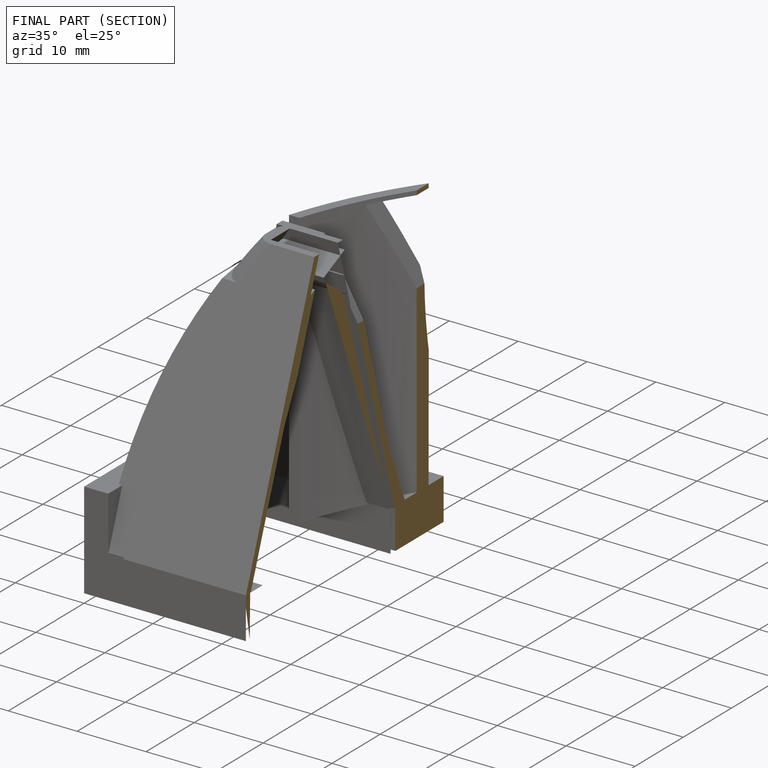
[diagram: finished part — half-section view (interior)]
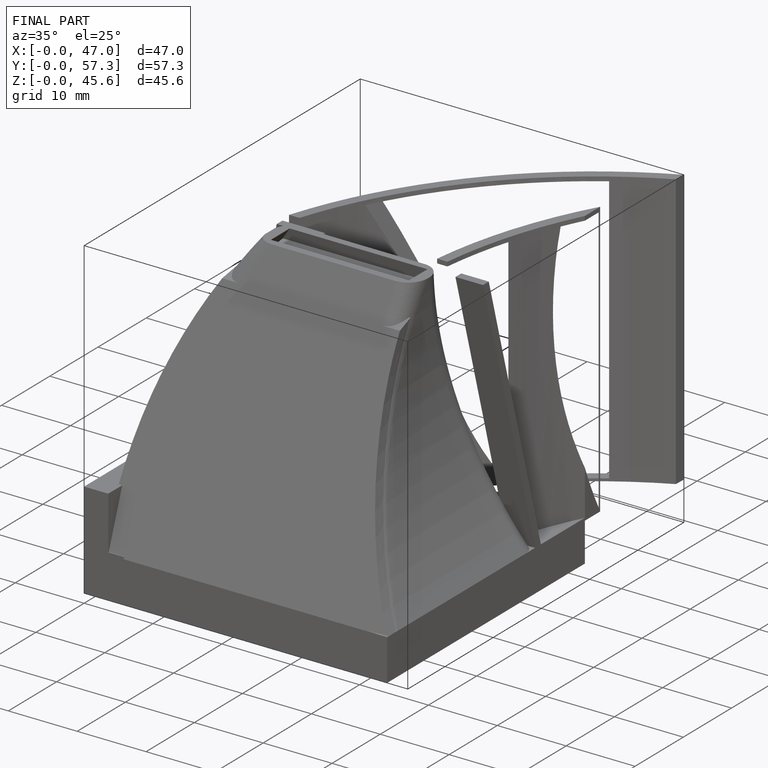
[diagram: finished part — iso view with bounding-box wireframe]
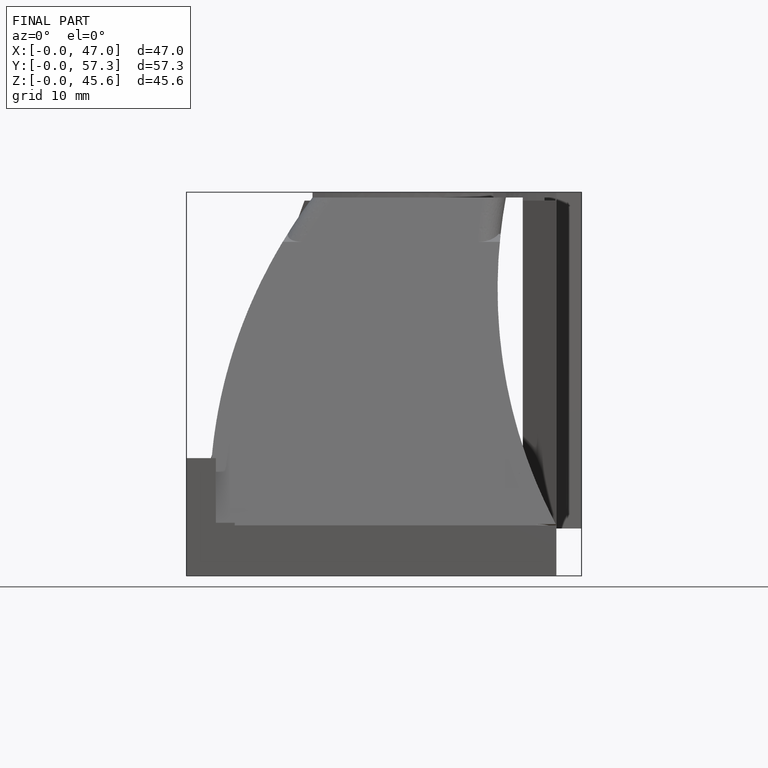
[diagram: finished part — front view with bounding-box wireframe]
